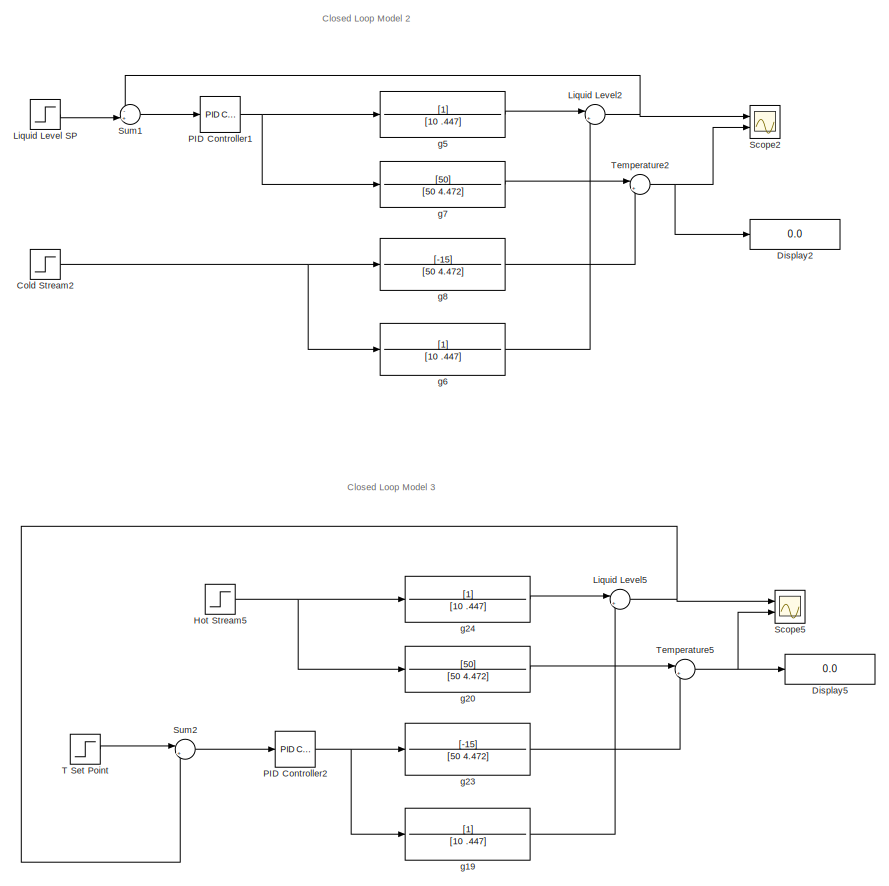
[diagram: root canvas - part 1/4, top right region]
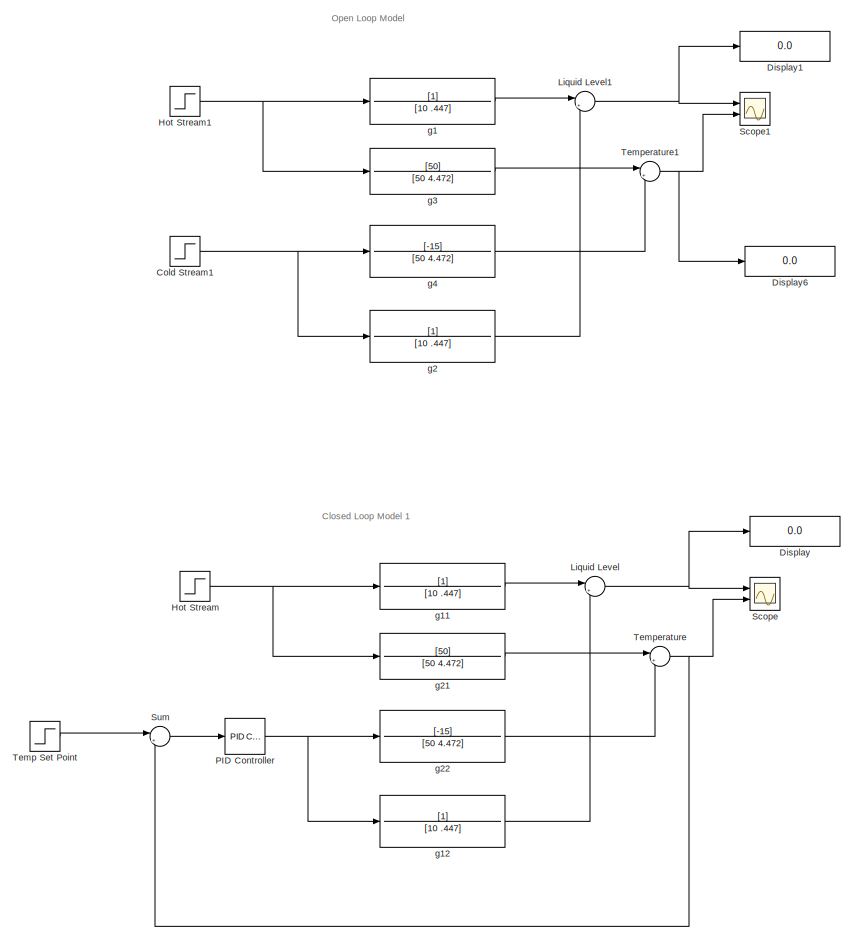
[diagram: root canvas - part 2/4, top left region]
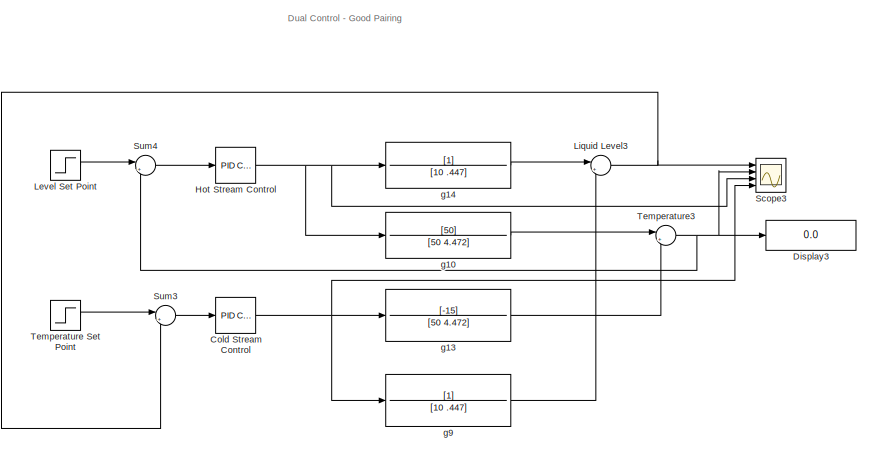
[diagram: root canvas - part 3/4, bottom left region]
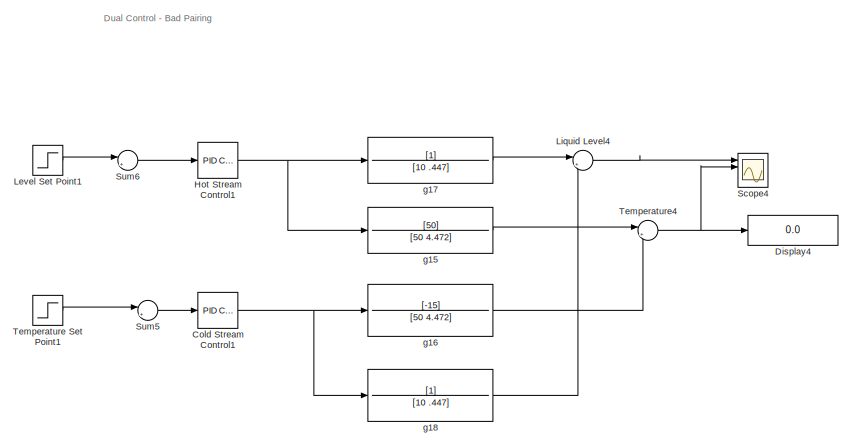
[diagram: root canvas - part 4/4, bottom right region]
MODEL slx_fd0da0e98936
KIND model
CONFIG AbsTol = auto
CONFIG EnableMultiTasking = off
CONFIG FixedStep = auto
CONFIG MaxStep = auto
CONFIG MinStep = auto
CONFIG RelTol = 1e-3
CONFIG SampleTimeConstraint = Unconstrained
CONFIG SolverName = VariableStepAuto
CONFIG StartTime = 0.0
CONFIG StopTime = 100
BLOCK [Reference] Cold Stream Control  REF=pid_lib/PID Controller
  Ports = [1, 1]
  SourceBlock = pid_lib/PID Controller
  SourceProductBaseCode = SL
  SourceType = PID 1dof
BLOCK [Reference] Cold Stream Control1  REF=pid_lib/PID Controller
  Ports = [1, 1]
  SourceBlock = pid_lib/PID Controller
  SourceProductBaseCode = SL
  SourceType = PID 1dof
BLOCK [Step] Cold Stream1
  After = 0
  SampleTime = 0
BLOCK [Step] Cold Stream2
  After = 0
  SampleTime = 0
BLOCK [Display] Display
  Decimation = 1
  Ports = [1]
BLOCK [Display] Display1
  Decimation = 1
  Ports = [1]
BLOCK [Display] Display2
  Decimation = 1
  Ports = [1]
BLOCK [Display] Display3
  Decimation = 1
  Ports = [1]
BLOCK [Display] Display4
  Decimation = 1
  Ports = [1]
BLOCK [Display] Display5
  Decimation = 1
  Ports = [1]
BLOCK [Display] Display6
  Decimation = 1
  Ports = [1]
BLOCK [Step] Hot Stream
  SampleTime = 0
BLOCK [Reference] Hot Stream Control  REF=pid_lib/PID Controller
  Ports = [1, 1]
  SourceBlock = pid_lib/PID Controller
  SourceProductBaseCode = SL
  SourceType = PID 1dof
BLOCK [Reference] Hot Stream Control1  REF=pid_lib/PID Controller
  Ports = [1, 1]
  SourceBlock = pid_lib/PID Controller
  SourceProductBaseCode = SL
  SourceType = PID 1dof
BLOCK [Step] Hot Stream1
  SampleTime = 0
BLOCK [Step] Hot Stream5
  After = 0
  SampleTime = 0
BLOCK [Step] Level Set Point
  After = 5
  SampleTime = 0
BLOCK [Step] Level Set Point1
  After = 5
  SampleTime = 0
BLOCK [Sum] Liquid Level
  Inputs = |++
  NameLocation = top
  Ports = [2, 1]
BLOCK [Step] Liquid Level SP
  After = 0
  SampleTime = 0
BLOCK [Sum] Liquid Level1
  Inputs = |++
  NameLocation = top
  Ports = [2, 1]
BLOCK [Sum] Liquid Level2
  Inputs = |++
  NameLocation = top
  Ports = [2, 1]
BLOCK [Sum] Liquid Level3
  Inputs = |++
  NameLocation = top
  Ports = [2, 1]
BLOCK [Sum] Liquid Level4
  Inputs = |++
  NameLocation = top
  Ports = [2, 1]
BLOCK [Sum] Liquid Level5
  Inputs = |++
  NameLocation = top
  Ports = [2, 1]
BLOCK [Reference] PID Controller  REF=pid_lib/PID Controller
  Ports = [1, 1]
  SourceBlock = pid_lib/PID Controller
  SourceProductBaseCode = SL
  SourceType = PID 1dof
BLOCK [Reference] PID Controller1  REF=pid_lib/PID Controller
  Ports = [1, 1]
  SourceBlock = pid_lib/PID Controller
  SourceProductBaseCode = SL
  SourceType = PID 1dof
BLOCK [Reference] PID Controller2  REF=pid_lib/PID Controller
  Ports = [1, 1]
  SourceBlock = pid_lib/PID Controller
  SourceProductBaseCode = SL
  SourceType = PID 1dof
BLOCK [Scope] Scope
  Floating = off
  NumInputPorts = 2
  Ports = [2]
  ScopeSpecificationString = Simulink.scopes.TimeScopeBlockCfg('CurrentConfiguration', extmgr.ConfigurationSet(extmgr.Configuration('Core','General UI',true),extmgr.Configuration('Core','Source UI',true),extmgr.Configuration('Sources','WiredSimulink',true),extmgr.Configuration('Visuals','Time Domain',true,'SerializedDisplays',{struct('MinYLimReal','-1.00000','MaxYLimReal','1.00000','YLabelReal','','MinYLimMag','0.00000','MaxY...<+1374ch>
BLOCK [Scope] Scope1
  Floating = off
  NumInputPorts = 2
  Ports = [2]
  ScopeSpecificationString = Simulink.scopes.TimeScopeBlockCfg('CurrentConfiguration', extmgr.ConfigurationSet(extmgr.Configuration('Core','General UI',true),extmgr.Configuration('Core','Source UI',true),extmgr.Configuration('Sources','WiredSimulink',true,'DataLoggingVariableName','ScopeData1'),extmgr.Configuration('Visuals','Time Domain',true,'SerializedDisplays',{struct('MinYLimReal','-1.00000','MaxYLimReal','1.00000','YLab...<+1415ch>
BLOCK [Scope] Scope2
  Floating = off
  NumInputPorts = 2
  Ports = [2]
  ScopeSpecificationString = Simulink.scopes.TimeScopeBlockCfg('CurrentConfiguration', extmgr.ConfigurationSet(extmgr.Configuration('Core','General UI',true),extmgr.Configuration('Core','Source UI',true),extmgr.Configuration('Sources','WiredSimulink',true,'DataLoggingVariableName','ScopeData2'),extmgr.Configuration('Visuals','Time Domain',true,'SerializedDisplays',{struct('MinYLimReal','-1.00000','MaxYLimReal','1.00000','YLab...<+1415ch>
BLOCK [Scope] Scope3
  Floating = off
  NumInputPorts = 4
  Ports = [4]
  ScopeSpecificationString = Simulink.scopes.TimeScopeBlockCfg('CurrentConfiguration', extmgr.ConfigurationSet(extmgr.Configuration('Core','General UI',true),extmgr.Configuration('Core','Source UI',true),extmgr.Configuration('Sources','WiredSimulink',true,'DataLoggingVariableName','ScopeData1'),extmgr.Configuration('Visuals','Time Domain',true,'SerializedDisplays',{struct('MinYLimReal','-10.39031','MaxYLimReal','41.79863','YL...<+1558ch>
BLOCK [Scope] Scope4
  Floating = off
  NumInputPorts = 4
  Ports = [4]
  ScopeSpecificationString = Simulink.scopes.TimeScopeBlockCfg('CurrentConfiguration', extmgr.ConfigurationSet(extmgr.Configuration('Core','General UI',true),extmgr.Configuration('Core','Source UI',true),extmgr.Configuration('Sources','WiredSimulink',true,'DataLoggingVariableName','ScopeData1'),extmgr.Configuration('Visuals','Time Domain',true,'SerializedDisplays',{struct('MinYLimReal','-66235662475426353970294802087936.00000...<+1753ch>
BLOCK [Scope] Scope5
  Floating = off
  NumInputPorts = 2
  Ports = [2]
  ScopeSpecificationString = Simulink.scopes.TimeScopeBlockCfg('CurrentConfiguration', extmgr.ConfigurationSet(extmgr.Configuration('Core','General UI',true),extmgr.Configuration('Core','Source UI',true),extmgr.Configuration('Sources','WiredSimulink',true,'DataLoggingVariableName','ScopeData5'),extmgr.Configuration('Visuals','Time Domain',true,'SerializedDisplays',{struct('MinYLimReal','-1.00000','MaxYLimReal','1.00000','YLab...<+1415ch>
BLOCK [Sum] Sum
  Inputs = |+-
  Ports = [2, 1]
BLOCK [Sum] Sum1
  Inputs = -+|
  Ports = [2, 1]
BLOCK [Sum] Sum2
  Inputs = |+-
  Ports = [2, 1]
BLOCK [Sum] Sum3
  Inputs = |+-
  Ports = [2, 1]
BLOCK [Sum] Sum4
  Inputs = |+-
  Ports = [2, 1]
BLOCK [Sum] Sum5
  Inputs = |+-
  Ports = [2, 1]
BLOCK [Sum] Sum6
  Inputs = |+-
  Ports = [2, 1]
BLOCK [Step] T Set Point
  After = 0
  SampleTime = 0
BLOCK [Step] Temp Set Point
  After = 0
  SampleTime = 0
BLOCK [Sum] Temperature
  Inputs = |++
  NameLocation = top
  Ports = [2, 1]
BLOCK [Step] Temperature Set Point
  After = 20
  SampleTime = 0
  Time = 50
BLOCK [Step] Temperature Set Point1
  After = 20
  SampleTime = 0
  Time = 50
BLOCK [Sum] Temperature1
  Inputs = |++
  NameLocation = top
  Ports = [2, 1]
BLOCK [Sum] Temperature2
  Inputs = |++
  NameLocation = top
  Ports = [2, 1]
BLOCK [Sum] Temperature3
  Inputs = |++
  NameLocation = top
  Ports = [2, 1]
BLOCK [Sum] Temperature4
  Inputs = |++
  NameLocation = top
  Ports = [2, 1]
BLOCK [Sum] Temperature5
  Inputs = |++
  NameLocation = top
  Ports = [2, 1]
BLOCK [TransferFcn] g1
  Denominator = [10 .447]
BLOCK [TransferFcn] g10
  Denominator = [50 4.472]
  Numerator = [50]
BLOCK [TransferFcn] g11
  Denominator = [10 .447]
BLOCK [TransferFcn] g12
  Denominator = [10 .447]
BLOCK [TransferFcn] g13
  Denominator = [50 4.472]
  Numerator = [-15]
BLOCK [TransferFcn] g14
  Denominator = [10 .447]
BLOCK [TransferFcn] g15
  Denominator = [50 4.472]
  Numerator = [50]
BLOCK [TransferFcn] g16
  Denominator = [50 4.472]
  Numerator = [-15]
BLOCK [TransferFcn] g17
  Denominator = [10 .447]
BLOCK [TransferFcn] g18
  Denominator = [10 .447]
BLOCK [TransferFcn] g19
  Denominator = [10 .447]
BLOCK [TransferFcn] g2
  Denominator = [10 .447]
BLOCK [TransferFcn] g20
  Denominator = [50 4.472]
  Numerator = [50]
BLOCK [TransferFcn] g21
  Denominator = [50 4.472]
  Numerator = [50]
BLOCK [TransferFcn] g22
  Denominator = [50 4.472]
  Numerator = [-15]
BLOCK [TransferFcn] g23
  Denominator = [50 4.472]
  Numerator = [-15]
BLOCK [TransferFcn] g24
  Denominator = [10 .447]
BLOCK [TransferFcn] g3
  Denominator = [50 4.472]
  Numerator = [50]
BLOCK [TransferFcn] g4
  Denominator = [50 4.472]
  Numerator = [-15]
BLOCK [TransferFcn] g5
  Denominator = [10 .447]
BLOCK [TransferFcn] g6
  Denominator = [10 .447]
BLOCK [TransferFcn] g7
  Denominator = [50 4.472]
  Numerator = [50]
BLOCK [TransferFcn] g8
  Denominator = [50 4.472]
  Numerator = [-15]
BLOCK [TransferFcn] g9
  Denominator = [10 .447]
ANNOTATION (root): Closed Loop Model 1
ANNOTATION (root): Closed Loop Model 2
ANNOTATION (root): Closed Loop Model 3
ANNOTATION (root): Dual Control - Bad Pairing
ANNOTATION (root): Dual Control - Good Pairing
ANNOTATION (root): Open Loop Model
NET Cold Stream Control1:1 -> g16:1, g18:1
NET Cold Stream Control:1 -> Scope3:4, g13:1, g9:1
NET Cold Stream1:1 -> g2:1, g4:1
NET Cold Stream2:1 -> g6:1, g8:1
NET Hot Stream Control1:1 -> g15:1, g17:1
NET Hot Stream Control:1 -> Scope3:3, g10:1, g14:1
NET Hot Stream1:1 -> g1:1, g3:1
NET Hot Stream5:1 -> g20:1, g24:1
NET Hot Stream:1 -> g11:1, g21:1
LINE Level Set Point1:1 -> Sum6:1
LINE Level Set Point:1 -> Sum4:1
LINE Liquid Level SP:1 -> Sum1:2
NET Liquid Level1:1 -> Display1:1, Scope1:1
NET Liquid Level2:1 -> Scope2:1, Sum1:1
NET Liquid Level3:1 -> Scope3:1, Sum3:2
LINE Liquid Level4:1 -> Scope4:1
NET Liquid Level5:1 -> Scope5:1, Sum2:2
NET Liquid Level:1 -> Display:1, Scope:1
NET PID Controller1:1 -> g5:1, g7:1
NET PID Controller2:1 -> g19:1, g23:1
NET PID Controller:1 -> g12:1, g22:1
LINE Sum1:1 -> PID Controller1:1
LINE Sum2:1 -> PID Controller2:1
LINE Sum3:1 -> Cold Stream Control:1
LINE Sum4:1 -> Hot Stream Control:1
LINE Sum5:1 -> Cold Stream Control1:1
LINE Sum6:1 -> Hot Stream Control1:1
LINE Sum:1 -> PID Controller:1
LINE T Set Point:1 -> Sum2:1
LINE Temp Set Point:1 -> Sum:1
LINE Temperature Set Point1:1 -> Sum5:1
LINE Temperature Set Point:1 -> Sum3:1
NET Temperature1:1 -> Display6:1, Scope1:2
NET Temperature2:1 -> Display2:1, Scope2:2
NET Temperature3:1 -> Display3:1, Scope3:2, Sum4:2
NET Temperature4:1 -> Display4:1, Scope4:2
NET Temperature5:1 -> Display5:1, Scope5:2
NET Temperature:1 -> Scope:2, Sum:2
LINE g10:1 -> Temperature3:1
LINE g11:1 -> Liquid Level:1
LINE g12:1 -> Liquid Level:2
LINE g13:1 -> Temperature3:2
LINE g14:1 -> Liquid Level3:1
LINE g15:1 -> Temperature4:1
LINE g16:1 -> Temperature4:2
LINE g17:1 -> Liquid Level4:1
LINE g18:1 -> Liquid Level4:2
LINE g19:1 -> Liquid Level5:2
LINE g1:1 -> Liquid Level1:1
LINE g20:1 -> Temperature5:1
LINE g21:1 -> Temperature:1
LINE g22:1 -> Temperature:2
LINE g23:1 -> Temperature5:2
LINE g24:1 -> Liquid Level5:1
LINE g2:1 -> Liquid Level1:2
LINE g3:1 -> Temperature1:1
LINE g4:1 -> Temperature1:2
LINE g5:1 -> Liquid Level2:1
LINE g6:1 -> Liquid Level2:2
LINE g7:1 -> Temperature2:1
LINE g8:1 -> Temperature2:2
LINE g9:1 -> Liquid Level3:2
note: NET lines group one-source signal fan-out (src -> all destinations, sorted); 1:1 wires keep LINE
